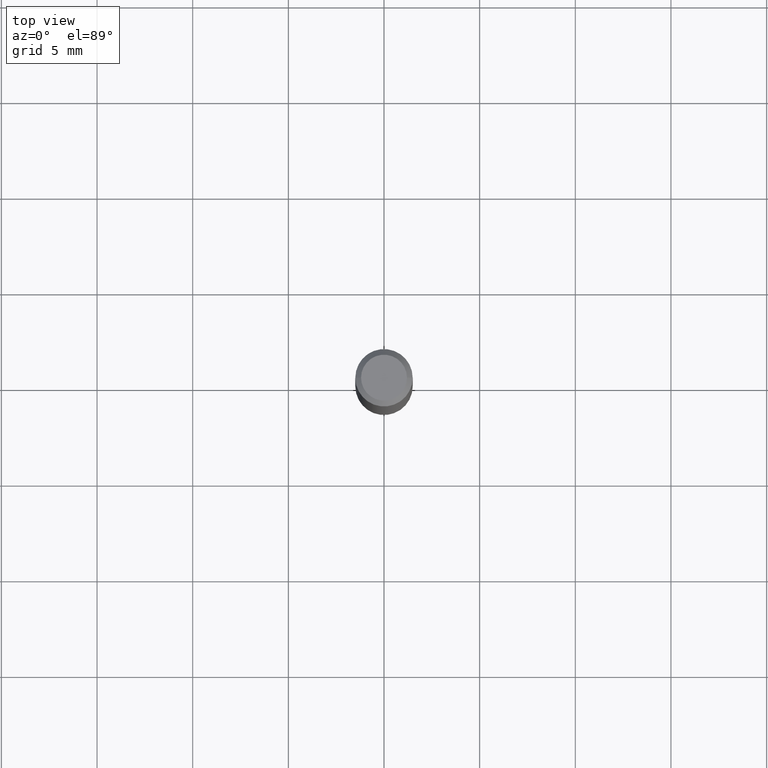
[diagram: clean part render]
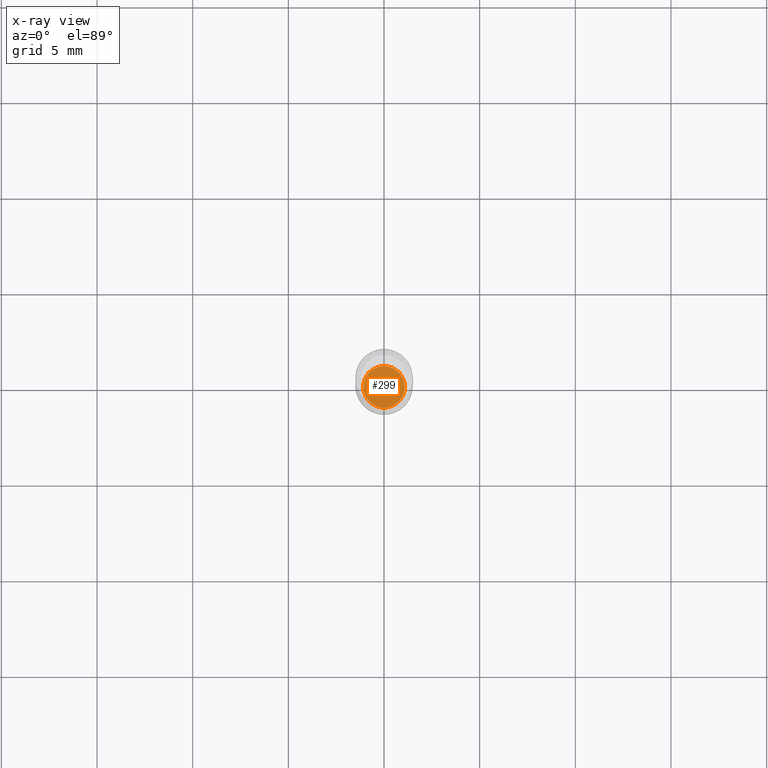
[diagram: x-ray — body ghosted, one internal face saturated and labeled with its STEP entity id]
A machine part, top view, then the same camera in x-ray: the body is ghosted and one INTERNAL B-rep face — a face not visible from any outside direction — is saturated and labeled: STEP entity #299.
In plain terms, the highlighted planar face has unit normal (-0, 0, 1).
Its self-contained STEP definition (entity closure, byte-faithful):
#3 = AXIS2_PLACEMENT_3D ( 'NONE', #193, #120, #89 ) ;
#20 = DIRECTION ( 'NONE',  ( -2.438088387897960049E-29, 3.491481338843145188E-15, 1.000000000000000000 ) ) ;
#53 = FACE_OUTER_BOUND ( 'NONE', #317, .T. ) ;
#57 = PLANE ( 'NONE',  #82 ) ;
#71 = ORIENTED_EDGE ( 'NONE', *, *, #186, .F. ) ;
#82 = AXIS2_PLACEMENT_3D ( 'NONE', #209, #20, #214 ) ;
#89 = DIRECTION ( 'NONE',  ( 1.000000000000000000, -6.982962677686269077E-15, 0.000000000000000000 ) ) ;
#120 = DIRECTION ( 'NONE',  ( -2.445468806185136597E-29, 3.491481338843145583E-15, 1.000000000000000000 ) ) ;
#131 = VERTEX_POINT ( 'NONE', #380 ) ;
#143 = EDGE_CURVE ( 'NONE', #370, #131, #318, .T. ) ;
#186 = EDGE_CURVE ( 'NONE', #131, #370, #228, .T. ) ;
#193 = CARTESIAN_POINT ( 'NONE',  ( 2.676565608369632355E-29, -3.821426325363822773E-15, -1.094500000000000028 ) ) ;
#209 = CARTESIAN_POINT ( 'NONE',  ( 2.374170476497901664E-30, -7.314425892029170306E-15, -1.094500000000000028 ) ) ;
#214 = DIRECTION ( 'NONE',  ( 1.000000000000000000, -6.982962677686265922E-15, 4.876176775795935793E-29 ) ) ;
#221 = ORIENTED_EDGE ( 'NONE', *, *, #143, .F. ) ;
#228 = CIRCLE ( 'NONE', #350, 0.04279999999999998389 ) ;
#235 = CARTESIAN_POINT ( 'NONE',  ( 0.04279999999999998389, -4.120297127968795228E-15, -1.094500000000000028 ) ) ;
#239 = DIRECTION ( 'NONE',  ( -2.445468806185136597E-29, 3.491481338843145583E-15, 1.000000000000000000 ) ) ;
#299 = ADVANCED_FACE ( 'NONE', ( #53 ), #57, .F. ) ;
#317 = EDGE_LOOP ( 'NONE', ( #221, #71 ) ) ;
#318 = CIRCLE ( 'NONE', #3, 0.04279999999999998389 ) ;
#350 = AXIS2_PLACEMENT_3D ( 'NONE', #361, #239, #391 ) ;
#361 = CARTESIAN_POINT ( 'NONE',  ( 2.676565608369632355E-29, -3.821426325363822773E-15, -1.094500000000000028 ) ) ;
#370 = VERTEX_POINT ( 'NONE', #235 ) ;
#380 = CARTESIAN_POINT ( 'NONE',  ( -0.04279999999999998389, -3.514664807284389054E-15, -1.094500000000000028 ) ) ;
#391 = DIRECTION ( 'NONE',  ( 1.000000000000000000, -6.982962677686269077E-15, 0.000000000000000000 ) ) ;